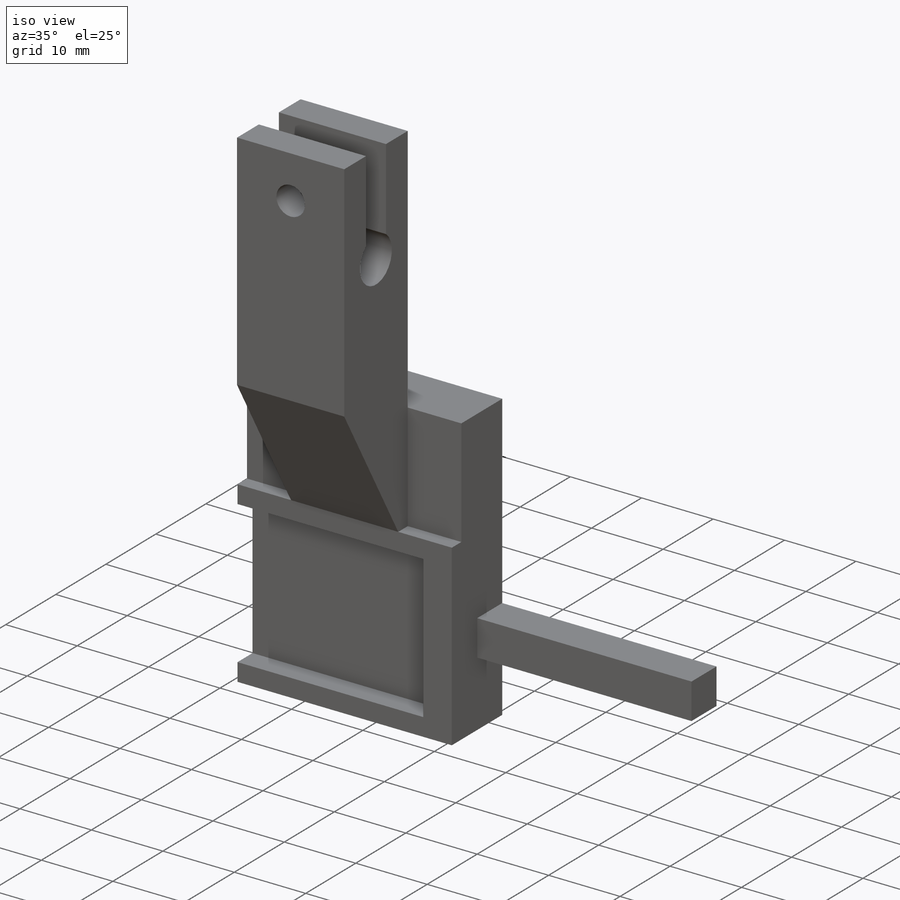
[diagram: iso view]
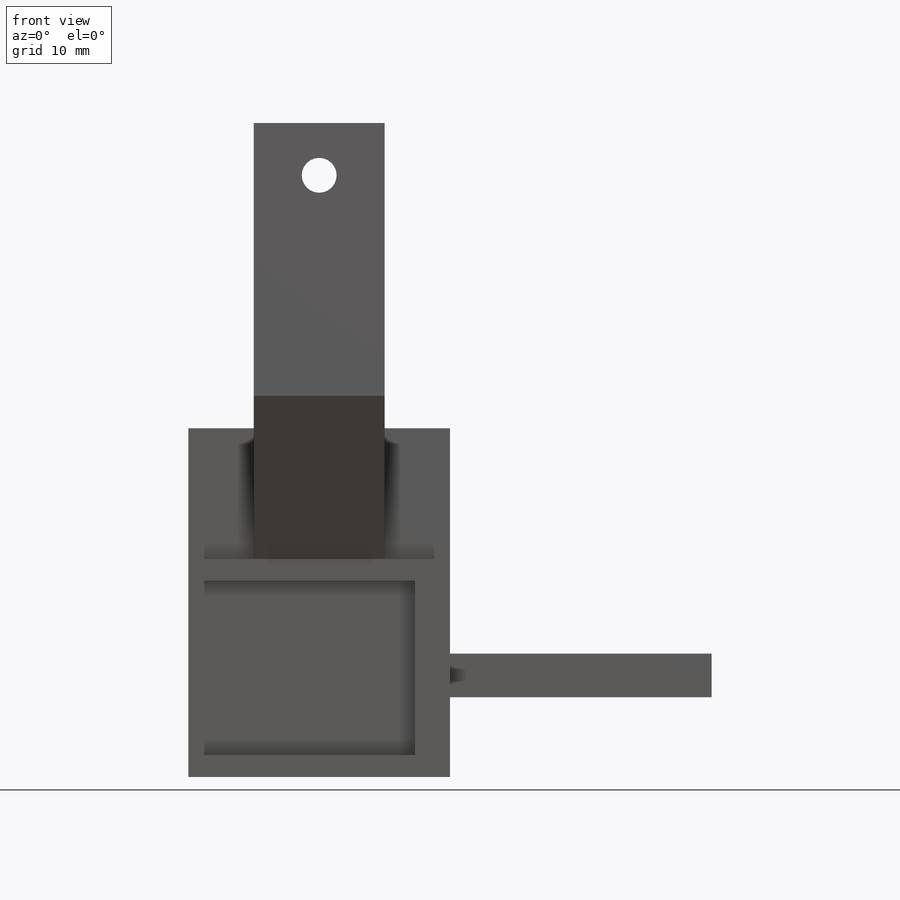
[diagram: front view]
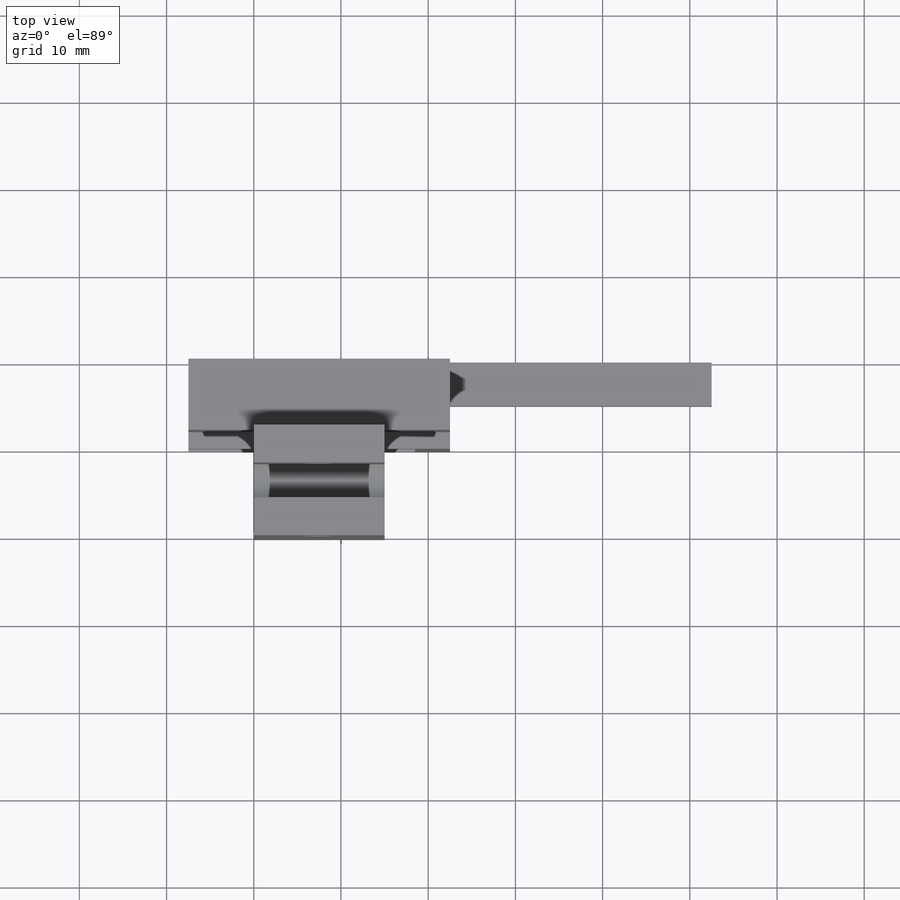
[diagram: top view]
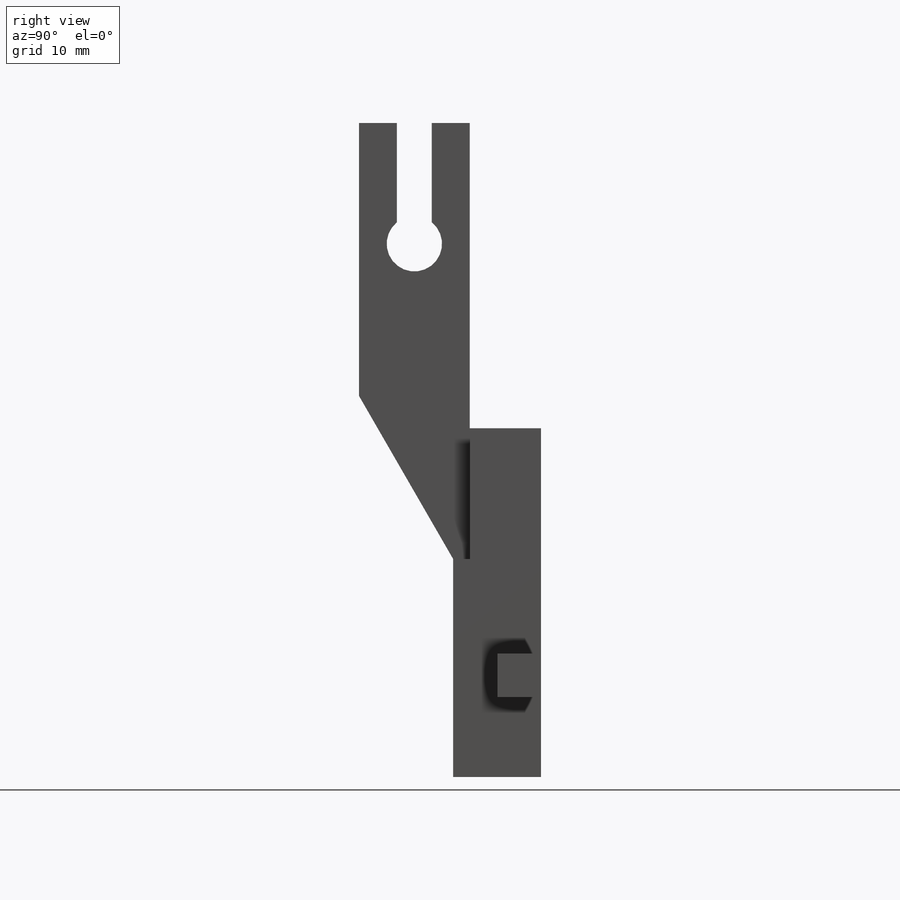
[diagram: right view]
SOLIDWORKS PART (.sldprt)
format: sldprt  version: not decoded by parser v0  size: 264,704 bytes
history: native  units: mm
features: sketch x9, extrude x5, cut_extrude x4, material x1 (+16 scaffold rows collapsed)
feature tree (35):
  scaffold x16  (default folders/planes/origin — collapsed)
  material  "Material <not specified>"
  sketch  "Sketch2"  dims[c1.D1=12.7mm c1.D2=25.0mm c1.D3=10.0mm c2.D1=12.7mm c2.D2=8.175mm c2.D3=50.0mm c2.D4=40.0mm c2.D5=25.0mm]
  extrude  "Boss-Extrude1"  Depth=15mm
  sketch  "Sketch7"  dims[D1=6.35mm D2=4.0mm D3=48.65mm]
  cut_extrude  "Cut-Extrude4"  [1 undecoded]
  sketch  "Sketch8"  dims[D1=4.0mm D2=6.0mm]
  cut_extrude  "Cut-Extrude5"  [1 undecoded]
  sketch  "Sketch9"
  extrude  "Boss-Extrude2"  Depth=22.5mm
  sketch  "Sketch11"  dims[D1=20.0mm D2=2.5mm D3=1.1mm]
  cut_extrude  "Cut-Extrude6"  Depth=26mm
  sketch  "Sketch12"  dims[c1.D1=5.0mm c1.D2=2.0mm c1.D3=3.0mm c1.D4=3.0mm c2.D1=2.0mm c2.D5=3.0mm c2.D6=2.0mm c2.D7=1.1mm c3.D7=90.0deg c4.D7=2.0mm c4.D1=3.0mm c4.D2=2.0mm c4.D3=3.0mm]
  extrude  "Boss-Extrude4"  [1 undecoded]
  sketch  "Sketch13"
  extrude  "Boss-Extrude5"  [1 undecoded]
  sketch  "Sketch15"  dims[c1.D2=3.175mm c1.D1=9.525mm c2.D2=47.0mm c2.D3=5.0mm c2.D4=5.0mm c2.D5=1.825mm]
  extrude  "Boss-Extrude6"  Depth=30mm
  sketch  "Sketch16"  dims[c1.D1=~21.782307mm c2.D1=60.0deg]
  cut_extrude  "Cut-Extrude7"  [1 undecoded]
decode coverage: 11 of 18 modeling features carry decoded parameters
note: ~ marks probable driven/reference dimensions
note: 5 parameter values undecoded
summary: no parameter record found for 5 features
note: suppression state not decoded; provenance and decode notes live in map.json
